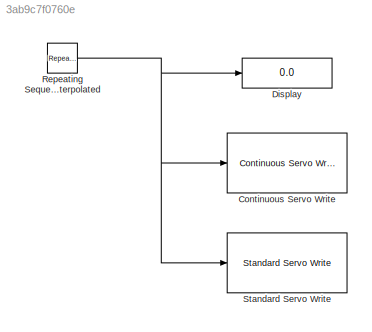
MODEL slx_3ab9c7f0760e
KIND model
CONFIG AbsTol = auto
CONFIG FixedStep = auto
CONFIG MaxStep = auto
CONFIG MinStep = auto
CONFIG RelTol = 1e-3
CONFIG SampleTimeConstraint = Unconstrained
CONFIG Solver = FixedStepAuto
CONFIG SolverMode = Auto
CONFIG SolverName = FixedStepAuto
CONFIG StartTime = 0.0
CONFIG StopTime = inf
BLOCK [Reference] Continuous Servo Write  REF=arduinolib/Continuous Servo Write
  Ports = [1]
  SourceBlock = arduinolib/Continuous Servo Write
  SourceType = Arduino Continuous Servo Write
BLOCK [Display] Display
  Decimation = 1
  Ports = [1]
BLOCK [Reference] Repeating Sequence Interpolated  REF=simulink/Sources/Repeating
Sequence
Interpolated
  Ports = [0, 1]
  SourceBlock = simulink/Sources/Repeating\nSequence\nInterpolated
  SourceType = Repeating Sequence Interpolated
BLOCK [Reference] Standard Servo Write  REF=arduinolib/Standard Servo Write
  Ports = [1]
  SourceBlock = arduinolib/Standard Servo Write
  SourceType = Arduino Standard Servo Write
NET Repeating Sequence Interpolated:1 -> Continuous Servo Write:1, Display:1, Standard Servo Write:1
note: NET lines group one-source signal fan-out (src -> all destinations, sorted); 1:1 wires keep LINE
